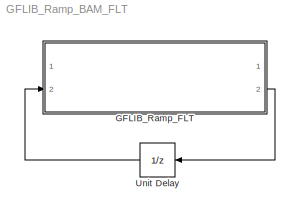
MODEL GFLIB_Ramp_BAM_FLT
KIND model
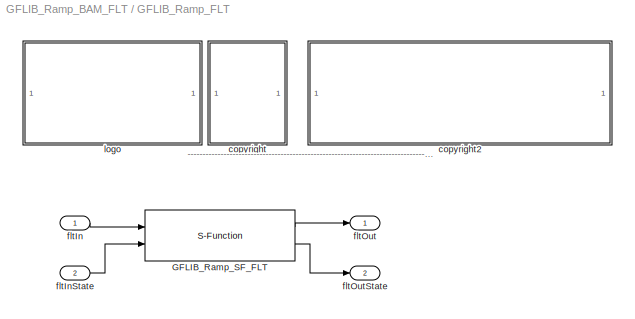
BLOCK [SubSystem] GFLIB_Ramp_FLT
  Ports = [2, 2]
  RequestExecContextInheritance = off
  SID = 1
BLOCK [S-Function] GFLIB_Ramp_FLT/GFLIB_Ramp_SF_FLT
  EnableBusSupport = off
  FunctionName = GFLIB_Ramp_SF_FLT
  Parameters = fltRampUp,fltRampDown
  Ports = [2, 2]
  SID = 4
BLOCK [SubSystem] GFLIB_Ramp_FLT/<copyright redacted>
  Ports = []
  RequestExecContextInheritance = off
  SID = 5
BLOCK [SubSystem] GFLIB_Ramp_FLT/copyright2
  Ports = []
  RequestExecContextInheritance = off
  SID = 6
BLOCK [Inport] GFLIB_Ramp_FLT/fltIn
  IconDisplay = Port number
  SID = 2
BLOCK [Inport] GFLIB_Ramp_FLT/fltInState
  IconDisplay = Port number
  Port = 2
  SID = 3
BLOCK [Outport] GFLIB_Ramp_FLT/fltOut
  IconDisplay = Port number
  SID = 8
BLOCK [Outport] GFLIB_Ramp_FLT/fltOutState
  IconDisplay = Port number
  Port = 2
  SID = 9
BLOCK [SubSystem] GFLIB_Ramp_FLT/logo
  Ports = []
  RequestExecContextInheritance = off
  SID = 7
BLOCK [UnitDelay] Unit Delay
  SID = 11
  SampleTime = -1
ANNOTATION GFLIB_Ramp_FLT: ---------------------------------------------------------------------------------------------------------------------------------------------------------------------------------------------------
LINE GFLIB_Ramp_FLT/GFLIB_Ramp_SF_FLT:1 -> GFLIB_Ramp_FLT/fltOut:1
LINE GFLIB_Ramp_FLT/GFLIB_Ramp_SF_FLT:2 -> GFLIB_Ramp_FLT/fltOutState:1
LINE GFLIB_Ramp_FLT/fltIn:1 -> GFLIB_Ramp_FLT/GFLIB_Ramp_SF_FLT:1
LINE GFLIB_Ramp_FLT/fltInState:1 -> GFLIB_Ramp_FLT/GFLIB_Ramp_SF_FLT:2
LINE GFLIB_Ramp_FLT:2 -> Unit Delay:1
LINE Unit Delay:1 -> GFLIB_Ramp_FLT:2
